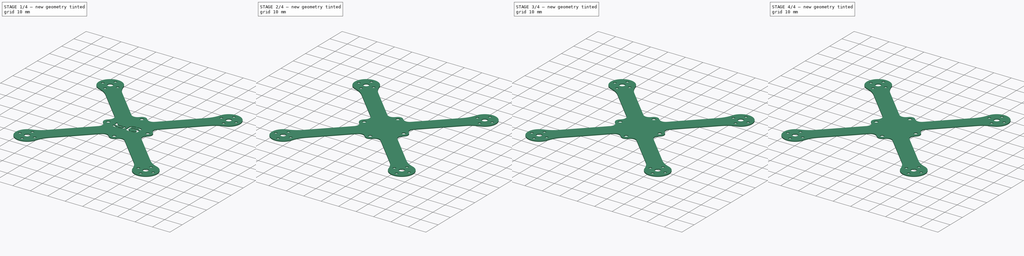
[diagram: build sequence overview — one tinted view per stage of 4, left to right]
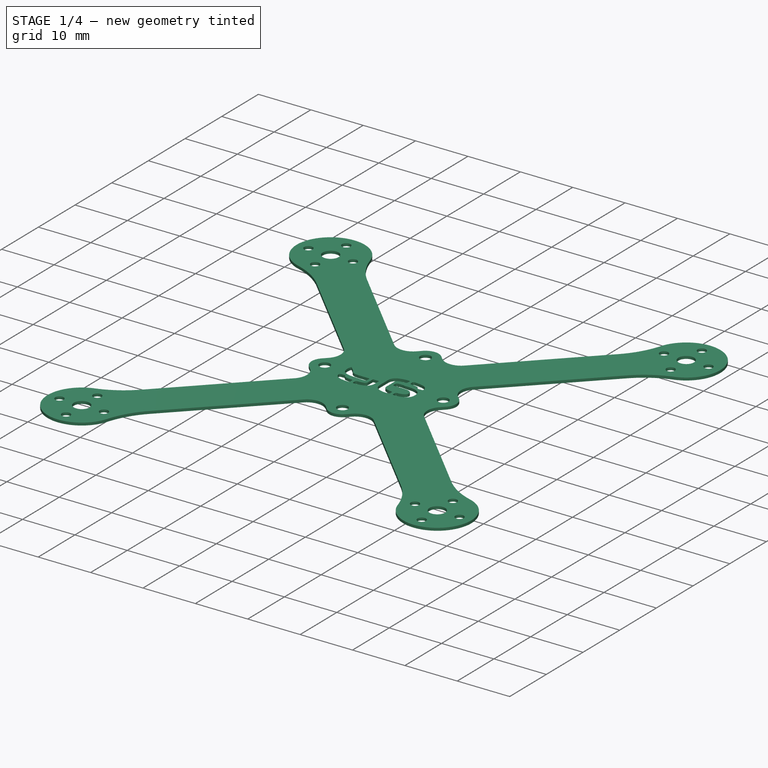
[diagram: stage 1 of 4 — iso view after this stage's code; geometry added in this stage tinted green]
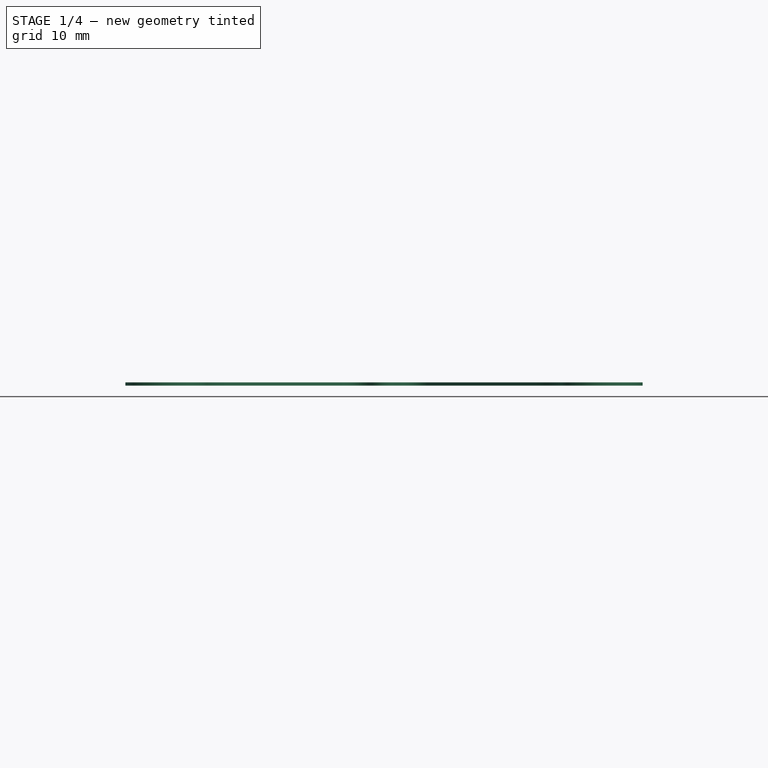
[diagram: stage 1 of 4 — front view after this stage's code; geometry added in this stage tinted green]
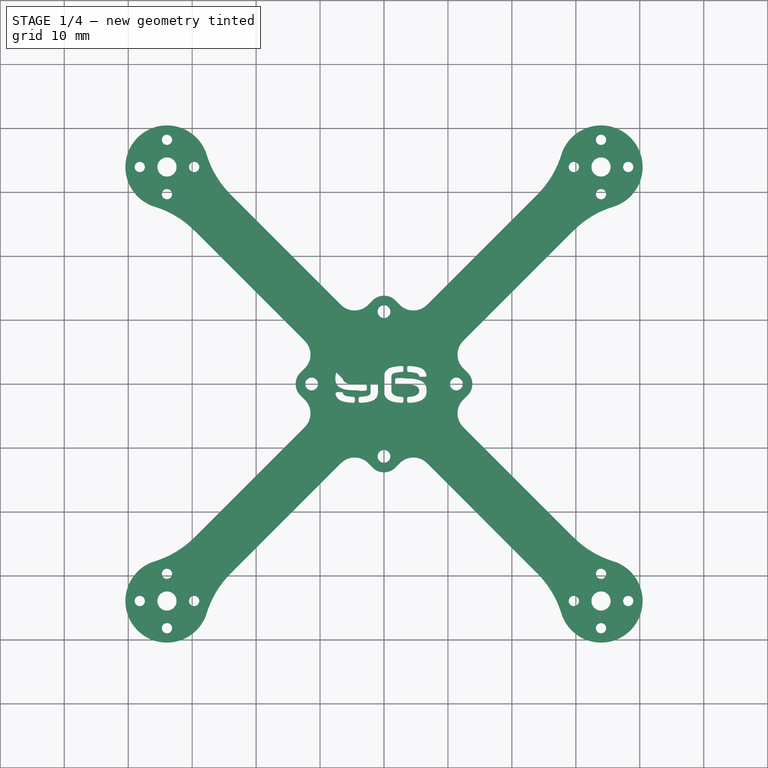
[diagram: stage 1 of 4 — top view after this stage's code; geometry added in this stage tinted green]
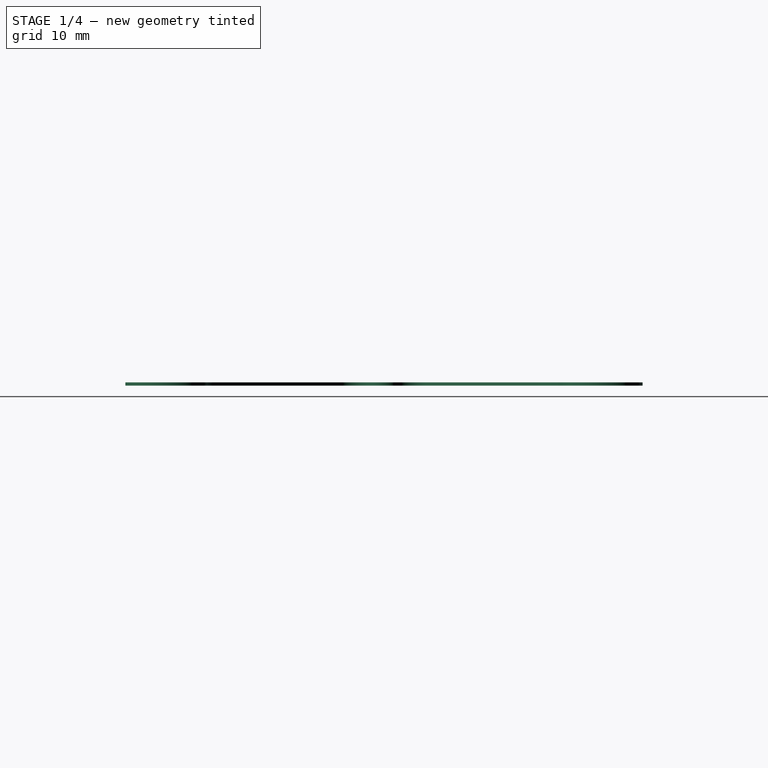
[diagram: stage 1 of 4 — right view after this stage's code; geometry added in this stage tinted green]
FCSTD DOCUMENT  (FreeCAD 0.16R6707 (Git))
Label: pepperF1SH_X96
License: All rights reserved
LicenseURL: http://en.wikipedia.org/wiki/All_rights_reserved
objects: PartDesign::Fillet×3, Sketcher::SketchObject×2, PartDesign::Pad×2, Part::MultiFuse×2, PartDesign::Mirrored×1, Part::Mirroring×1, Part::Part2DObjectPython×1, Part::Extrusion×1, Part::Feature×1, Part::Cut×1
note: 17 computed .brp shape members not serialized (recipe doc carries the construction recipe); baked Part::Feature solids carry a one-line shape summary decoded from their .brp

FEATURE [PartDesign::Pad] Pad  label="single arm"
  Length = 0.5
  Length2 = 100
  Midplane = true
  Sketch = -> Sketch
  Type = 0
FEATURE [Part::Part2DObjectPython] ShapeString  # Draft 2D object (typed FeaturePython)
  FontFile = <userpath>/.fonts/Antaris_ST_CF.otf
  Placement = pos=(-8.1,-3.35,-1.5) rot=(0,0,1;0rad)
  Size = 3.5
  String = 96
  Tracking = 0
FEATURE [Part::Extrusion] Extrude001
  Base = -> ShapeString
  Dir = (0,0,5)
  Solid = false
FEATURE [Part::Feature] Fillet002001  label="Fillet003"
  shape: bbox 80.88 x 80.88 x 0.5 mm, 66 faces (baked)
FEATURE [Part::Cut] Cut
  Base = -> Fillet002001
  Tool = -> Extrude001
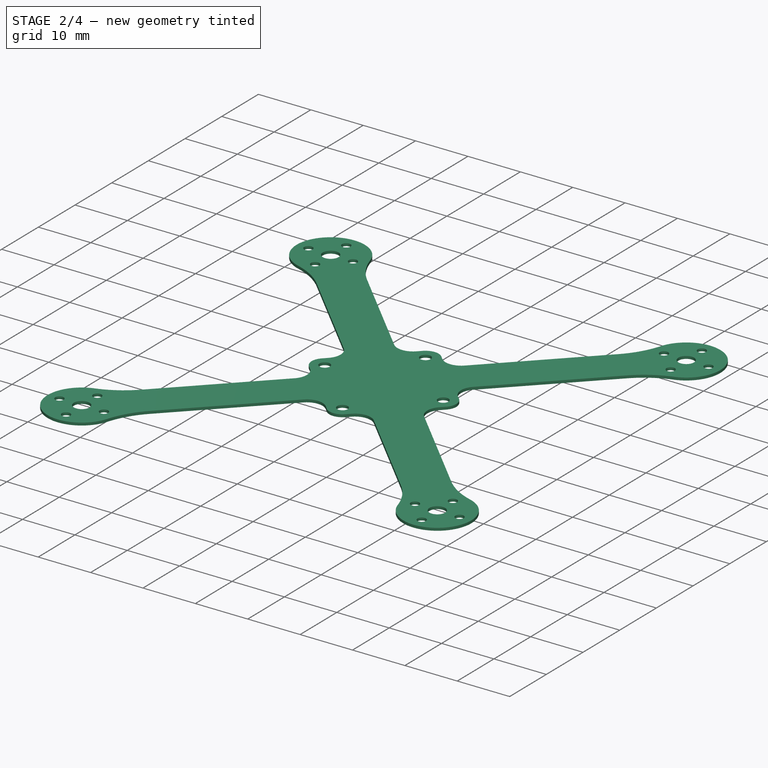
[diagram: stage 2 of 4 — iso view after this stage's code; geometry added in this stage tinted green]
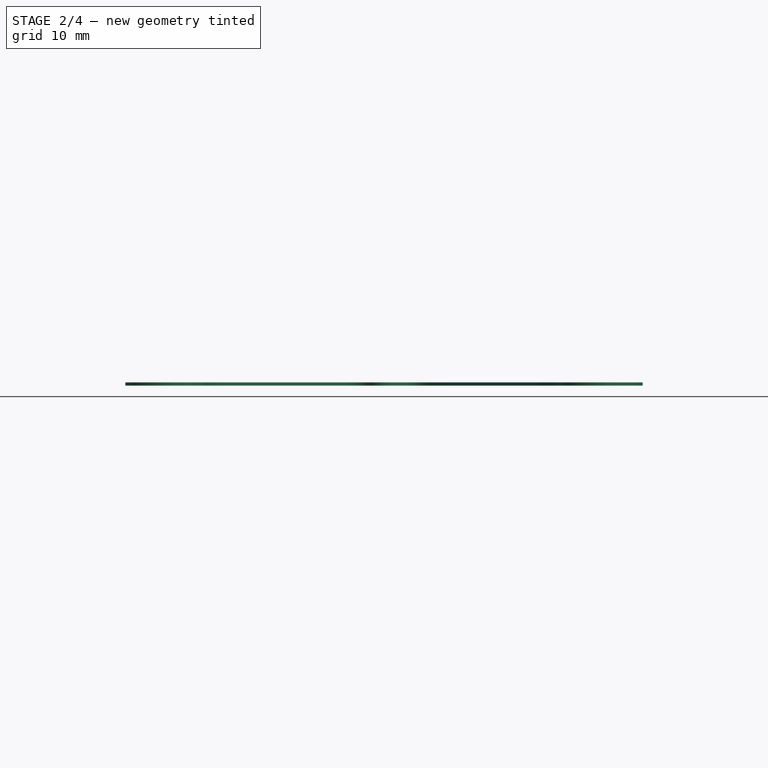
[diagram: stage 2 of 4 — front view after this stage's code; geometry added in this stage tinted green]
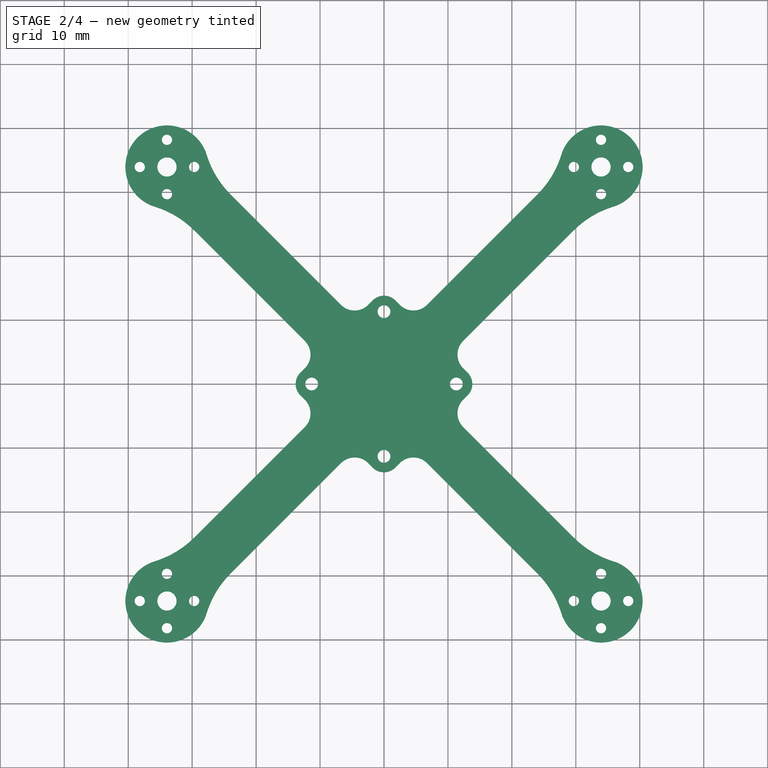
[diagram: stage 2 of 4 — top view after this stage's code; geometry added in this stage tinted green]
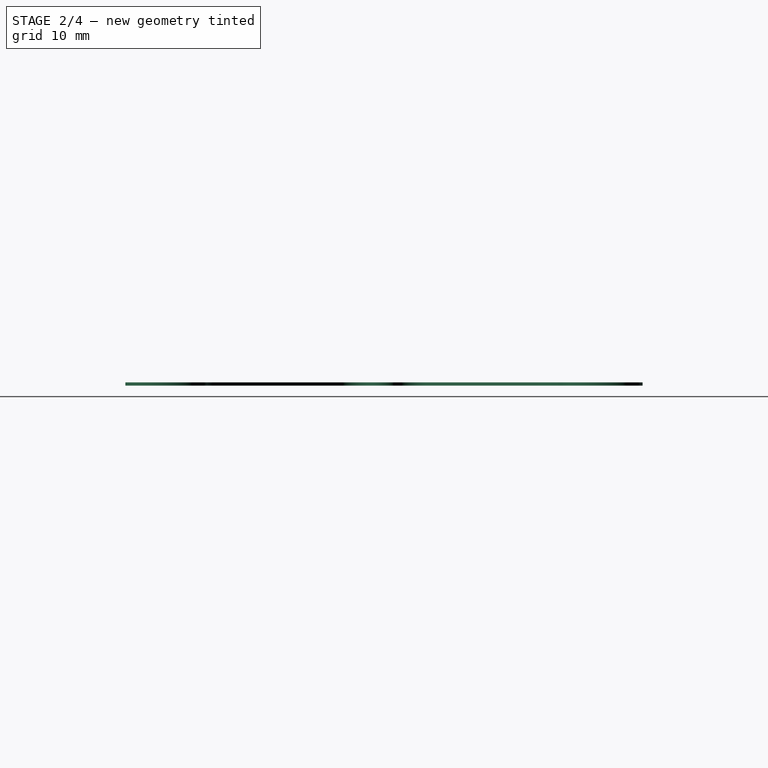
[diagram: stage 2 of 4 — right view after this stage's code; geometry added in this stage tinted green]
FEATURE [Sketcher::SketchObject] Sketch  label="single arm sketch"
  expr: Constraints.C8 = 48 / 2
  expr: Constraints[54] = 96 / 2
  sketch-geometry (22):
    g0: Circle [constr] CenterX=-33.9411 CenterY=33.9411 CenterZ=0 NormalX=0 NormalY=0 NormalZ=1 Radius=4.25
    g1: Circle CenterX=-33.9411 CenterY=38.1911 CenterZ=0 NormalX=0 NormalY=0 NormalZ=1 Radius=0.8
    g2: LineSegment [constr] StartX=-33.9411 StartY=33.9411 StartZ=0 EndX=-33.9411 EndY=38.1911 EndZ=0
    g3: Circle [constr] CenterX=-33.9411 CenterY=33.9411 CenterZ=0 NormalX=0 NormalY=0 NormalZ=1 Radius=24
    g4: Circle [constr] CenterX=33.9411 CenterY=33.9411 CenterZ=0 NormalX=0 NormalY=0 NormalZ=1 Radius=24
    g5: LineSegment [constr] StartX=-33.9411 StartY=33.9411 StartZ=0 EndX=0 EndY=0 EndZ=0
    g6: LineSegment [constr] StartX=-33.9411 StartY=38.1911 StartZ=0 EndX=-29.6911 EndY=33.9411 EndZ=0
    g7: LineSegment [constr] StartX=-29.6911 StartY=33.9411 StartZ=0 EndX=-33.9411 EndY=29.6911 EndZ=0
    g8: LineSegment [constr] StartX=-33.9411 StartY=29.6911 StartZ=0 EndX=-38.1911 EndY=33.9411 EndZ=0
    g9: LineSegment [constr] StartX=-38.1911 StartY=33.9411 StartZ=0 EndX=-33.9411 EndY=38.1911 EndZ=0
    g10: Circle CenterX=-38.1911 CenterY=33.9411 CenterZ=0 NormalX=0 NormalY=0 NormalZ=1 Radius=0.8
    g11: Circle CenterX=-33.9411 CenterY=29.6911 CenterZ=0 NormalX=0 NormalY=0 NormalZ=1 Radius=0.8
    g12: Circle CenterX=-29.6911 CenterY=33.9411 CenterZ=0 NormalX=0 NormalY=0 NormalZ=1 Radius=0.8
    g13: LineSegment [constr] StartX=-33.9411 StartY=38.9911 StartZ=0 EndX=-33.9411 EndY=40.4411 EndZ=0
    g14: LineSegment StartX=-33.1467 StartY=27.4899 StartZ=0 EndX=-5.65685 EndY=0 EndZ=0
    g15: LineSegment StartX=0 StartY=5.65685 StartZ=0 EndX=-27.4899 EndY=33.1467 EndZ=0
    g16: LineSegment StartX=0 StartY=0 StartZ=0 EndX=0 EndY=5.65685 EndZ=0
    g17: LineSegment StartX=0 StartY=0 StartZ=0 EndX=-5.65685 EndY=0 EndZ=0
    g18: LineSegment [constr] StartX=-5.65685 StartY=0 StartZ=0 EndX=0 EndY=5.65685 EndZ=0
    g19: Circle CenterX=-33.9411 CenterY=33.9411 CenterZ=0 NormalX=0 NormalY=0 NormalZ=1 Radius=1.5
    g20: ArcOfCircle CenterX=-33.9411 CenterY=33.9411 CenterZ=0 NormalX=0 NormalY=0 NormalZ=1 Radius=6.5 StartAngle=6.16066 EndAngle=11.1181
    g21: LineSegment [constr] StartX=-9.94113 StartY=33.9411 StartZ=0 EndX=9.94113 EndY=33.9411 EndZ=0
  constraints (60):
    c: Radius(g0) = 4.25
    c: PointOnObject(g1,g0)
    c: Radius(g1) = 0.8
    c: Coincident(g2,g0)
    c: Coincident(g2,g1)
    c: Vertical(g2)
    c: Coincident(g3,g0)
    c: Radius(g3) = 24  'C8'
    c: Equal(g4,g3)
    c: Symmetric(g0,g4,g-2)
    c: DistanceX(g0,g4) = 67.8823
    c: Coincident(g5,g-1)
    c: Angle(g-2,g5) = 0.785398
    c: Coincident(g0,g5)
    c: Coincident(g6,g7)
    c: Coincident(g7,g8)
    c: Coincident(g8,g9)
    c: Coincident(g9,g6)
    c: Coincident(g6,g1)
    c: PointOnObject(g7,g0)
    c: PointOnObject(g8,g0)
    c: Perpendicular(g7,g6)
    c: Coincident(g10,g8)
    c: Coincident(g11,g7)
    c: Coincident(g12,g6)
    c: Equal(g12,g1)
    c: Equal(g1,g10)
    c: Equal(g10,g11)
    c: Vertical(g13)
    c: DistanceY(g13) = 1.45
    c: Parallel(g15,g14)
    c: PointOnObject(g13,g1)
    c: Symmetric(g7,g6,g5)
    c: Equal(g9,g6)
    c: Equal(g6,g7)
    c: Equal(g7,g8)
    c: Coincident(g16,g-1)
    c: Vertical(g16)
    c: Coincident(g17,g-1)
    c: Horizontal(g17)
    c: Coincident(g15,g16)
    c: Coincident(g14,g17)
    c: Symmetric(g15,g14,g5)
    c: Coincident(g18,g14)
    c: Perpendicular(g5,g18)
    c: Distance(g18) = 8
    c: Coincident(g18,g15)
    c: Coincident(g19,g0)
    c: Radius(g19) = 1.5
    c: Coincident(g20,g15)
    c: Coincident(g20,g14)
    c: Perpendicular(g20,g13)
    c: PointOnObject(g13,g20)
    c: Perpendicular(g1,g13)
    c: Distance(g5) = 48
    c: PointOnObject(g21,g3)
    c: PointOnObject(g21,g4)
    c: Perpendicular(g4,g21)
    c: Perpendicular(g3,g21)
    c: DistanceX(g21,g21) = 19.8823
FEATURE [Sketcher::SketchObject] Sketch001  label="center sketch"
  sketch-geometry (15):
    g0: LineSegment [constr] StartX=0 StartY=11.3137 StartZ=0 EndX=-11.3137 EndY=0 EndZ=0
    g1: LineSegment [constr] StartX=-11.3137 StartY=0 StartZ=0 EndX=0 EndY=-11.3137 EndZ=0
    g2: LineSegment [constr] StartX=0 StartY=-11.3137 StartZ=0 EndX=11.3137 EndY=0 EndZ=0
    g3: LineSegment [constr] StartX=11.3137 StartY=0 StartZ=0 EndX=0 EndY=11.3137 EndZ=0
    g4: Circle [constr] CenterX=0 CenterY=0 CenterZ=0 NormalX=0 NormalY=0 NormalZ=1 Radius=11.3137
    g5: Circle CenterX=-11.3137 CenterY=0 CenterZ=0 NormalX=0 NormalY=0 NormalZ=1 Radius=1
    g6: Circle CenterX=0 CenterY=11.3137 CenterZ=0 NormalX=0 NormalY=0 NormalZ=1 Radius=1
    g7: Circle CenterX=11.3137 CenterY=0 CenterZ=0 NormalX=0 NormalY=0 NormalZ=1 Radius=1
    g8: Circle CenterX=0 CenterY=-11.3137 CenterZ=0 NormalX=0 NormalY=0 NormalZ=1 Radius=1
    g9: LineSegment StartX=0 StartY=14.8492 StartZ=0 EndX=-14.8492 EndY=0 EndZ=0
    g10: LineSegment StartX=-14.8492 StartY=0 StartZ=0 EndX=0 EndY=-14.8492 EndZ=0
    g11: LineSegment StartX=0 StartY=-14.8492 StartZ=0 EndX=14.8492 EndY=0 EndZ=0
    g12: LineSegment StartX=14.8492 StartY=0 StartZ=0 EndX=0 EndY=14.8492 EndZ=0
    g13: Circle [constr] CenterX=0 CenterY=0 CenterZ=0 NormalX=0 NormalY=0 NormalZ=1 Radius=14.8492
    g14: LineSegment [constr] StartX=0.707107 StartY=12.0208 StartZ=0 EndX=1.76777 EndY=13.0815 EndZ=0
  constraints (41):
    c: Coincident(g0,g1)
    c: Coincident(g1,g2)
    c: Coincident(g2,g3)
    c: Coincident(g3,g0)
    c: Equal(g0,g1)
    c: Equal(g0,g2)
    c: Equal(g0,g3)
    c: PointOnObject(g0,g4)
    c: PointOnObject(g1,g4)
    c: PointOnObject(g2,g4)
    c: PointOnObject(g3,g4)
    c: Coincident(g1,g-1)
    c: Coincident(g4,g-1)
    c: PointOnObject(g0,g-2)
    c: Distance(g0) = 16
    c: Coincident(g6,g0)
    c: Coincident(g7,g2)
    c: Coincident(g8,g1)
    c: Radius(g5) = 1
    c: Equal(g5,g6)
    c: Equal(g6,g7)
    c: Equal(g7,g8)
    c: Coincident(g9,g10)
    c: Coincident(g10,g11)
    c: Coincident(g11,g12)
    c: Coincident(g12,g9)
    c: Equal(g9,g10)
    c: Equal(g9,g11)
    c: Equal(g9,g12)
    c: PointOnObject(g9,g13)
    c: PointOnObject(g10,g13)
    c: PointOnObject(g11,g13)
    c: PointOnObject(g12,g13)
    c: Coincident(g10,g-1)
    c: PointOnObject(g9,g-2)
    c: PointOnObject(g14,g6)
    c: PointOnObject(g14,g12)
    c: Perpendicular(g12,g14)
    c: Coincident(g13,g-1)
    c: Distance(g14) = 1.5
    c: Perpendicular(g6,g14)
FEATURE [PartDesign::Pad] Pad001  label="center"
  Length = 0.5
  Length2 = 100
  Midplane = true
  Sketch = -> Sketch001
  Type = 0
FEATURE [PartDesign::Fillet] Fillet
  Base = -> Pad001 [Edge1,Edge2,Edge5,Edge8]
  Radius = 1
FEATURE [PartDesign::Mirrored] Mirrored
  MirrorPlane = -> Sketch [V_Axis]
  Originals = -> [Pad]
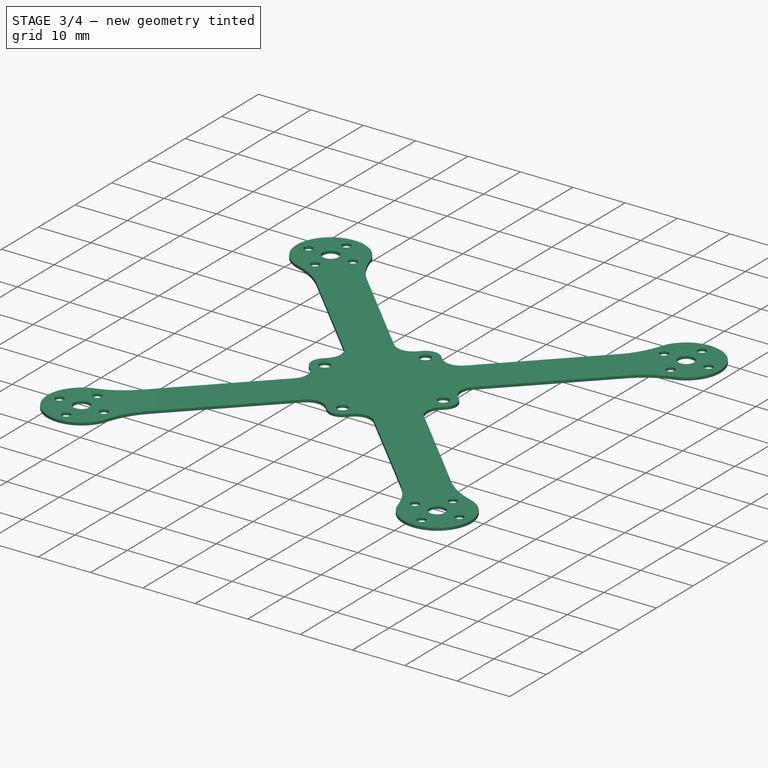
[diagram: stage 3 of 4 — iso view after this stage's code; geometry added in this stage tinted green]
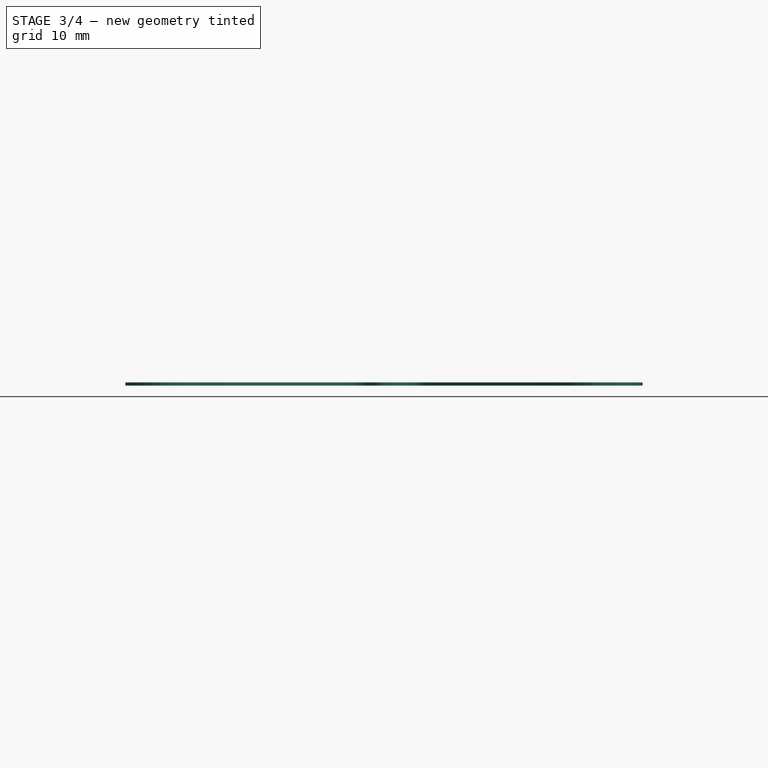
[diagram: stage 3 of 4 — front view after this stage's code; geometry added in this stage tinted green]
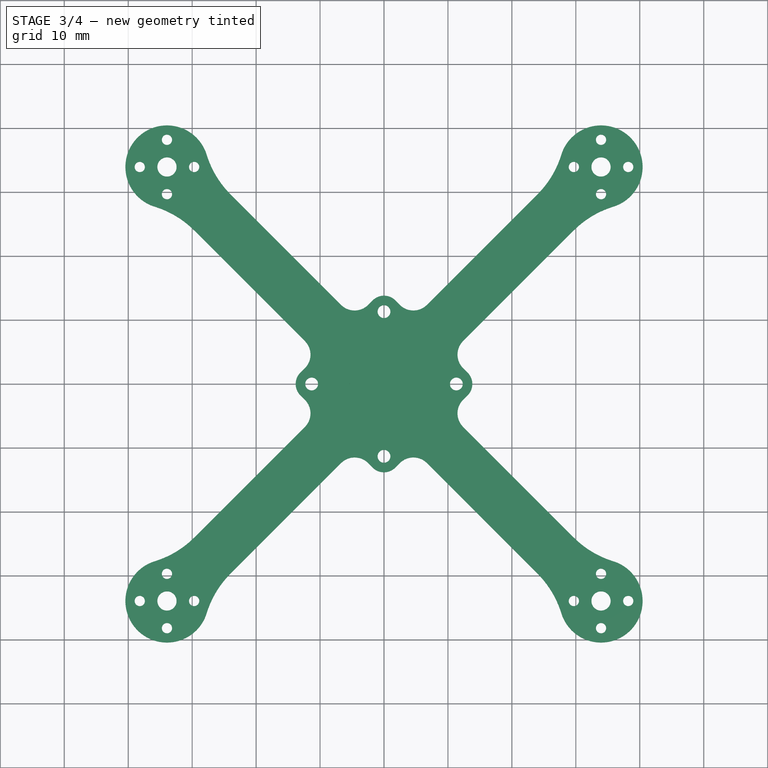
[diagram: stage 3 of 4 — top view after this stage's code; geometry added in this stage tinted green]
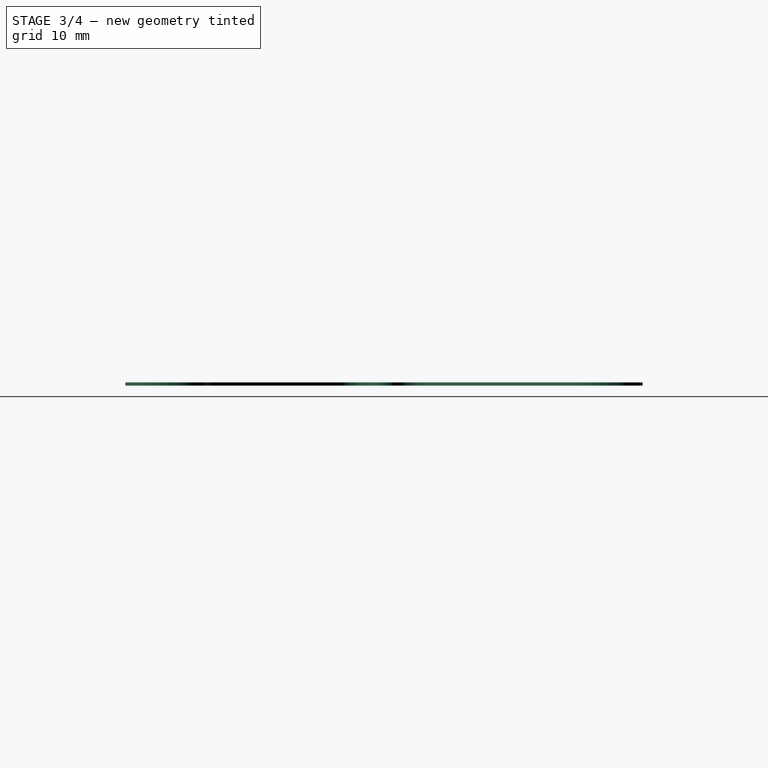
[diagram: stage 3 of 4 — right view after this stage's code; geometry added in this stage tinted green]
FEATURE [Part::Mirroring] Part__Mirroring  label="Mirrored (Mirror #1)"
  Base = (0,0,0)
  Normal = (0,1,0)
  Source = -> Mirrored
FEATURE [Part::MultiFuse] Fusion
  Shapes = -> [Mirrored,Part__Mirroring]
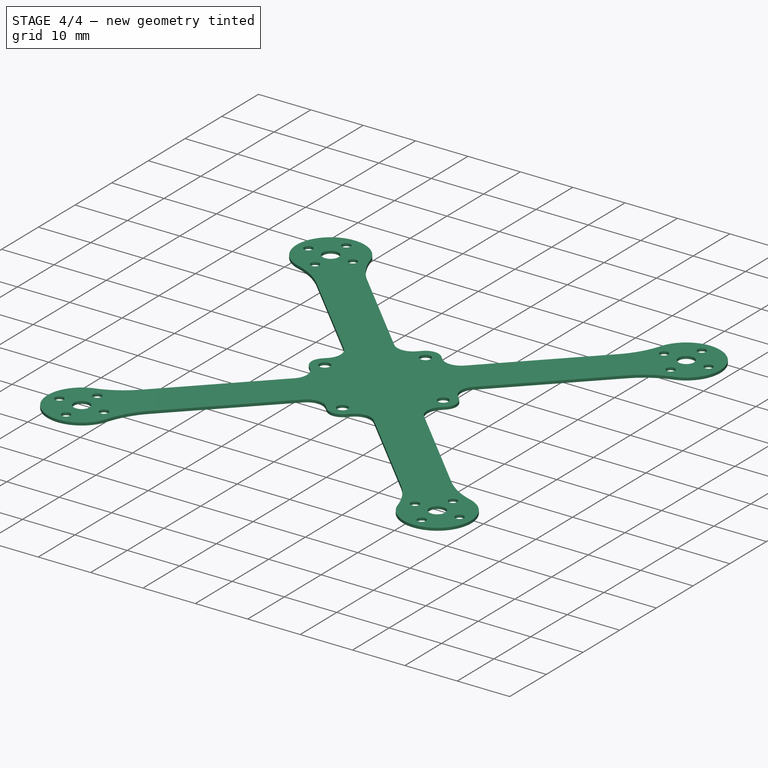
[diagram: stage 4 of 4 — iso view after this stage's code; geometry added in this stage tinted green]
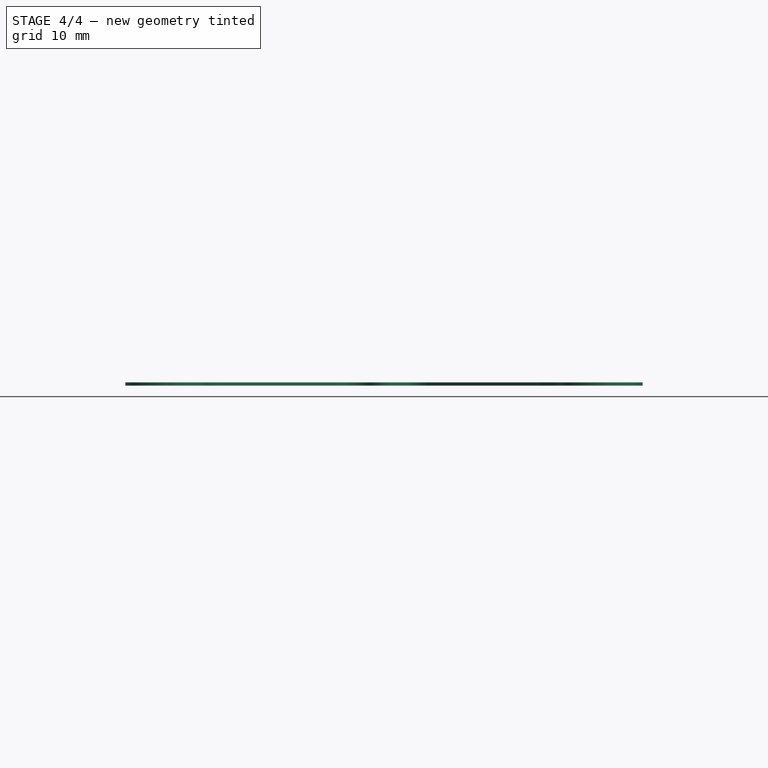
[diagram: stage 4 of 4 — front view after this stage's code; geometry added in this stage tinted green]
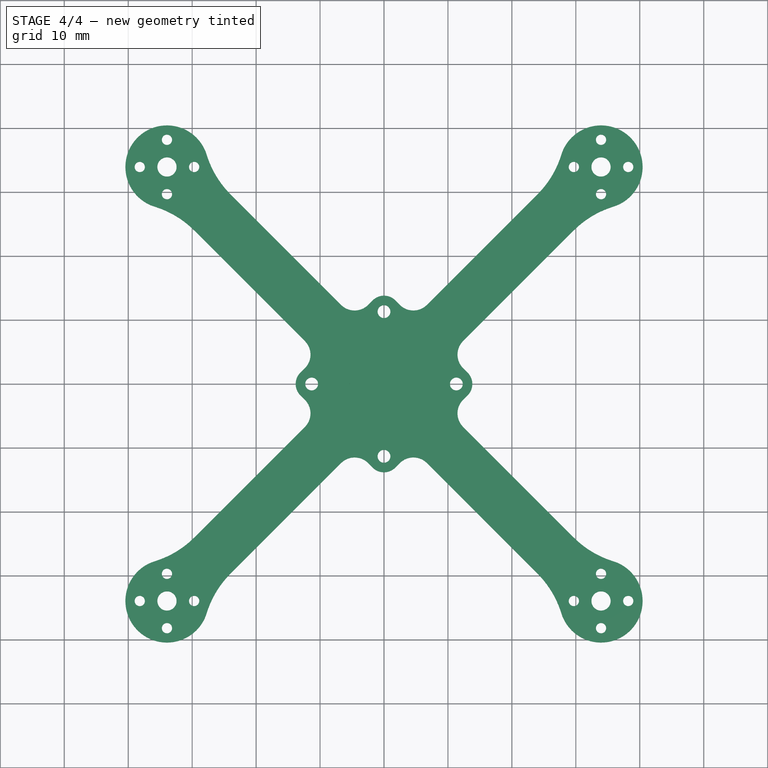
[diagram: stage 4 of 4 — top view after this stage's code; geometry added in this stage tinted green]
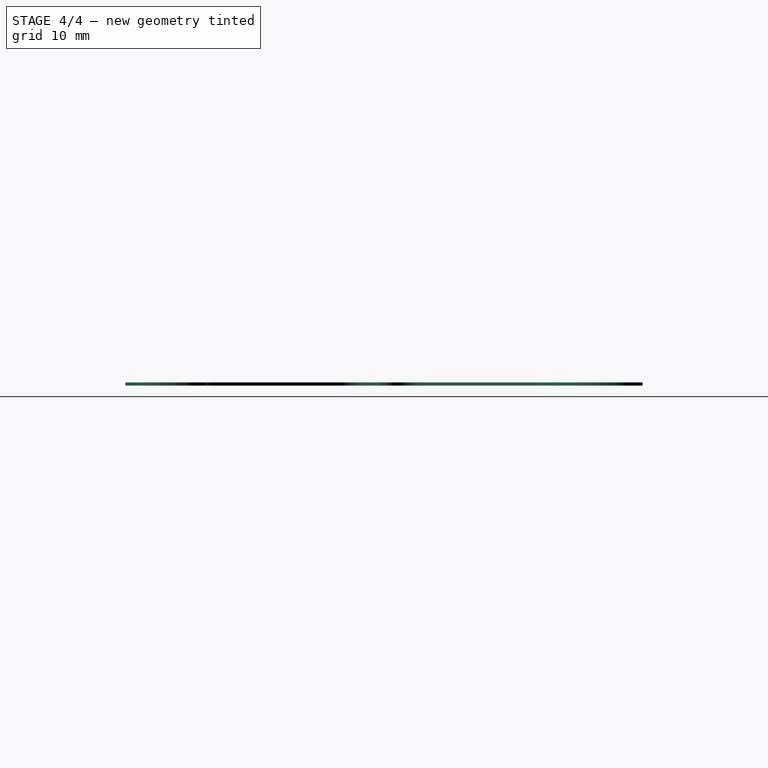
[diagram: stage 4 of 4 — right view after this stage's code; geometry added in this stage tinted green]
FEATURE [Part::MultiFuse] Fusion001
  Shapes = -> [Fusion,Fillet]
FEATURE [PartDesign::Fillet] Fillet001
  Base = -> Fusion001 [Edge171,Edge170,Edge156,Edge145,Edge131,Edge130,Edge1,Edge2]
  Radius = 15
FEATURE [PartDesign::Fillet] Fillet002
  Base = -> Fillet001 [Edge111,Edge171,Edge169,Edge158,Edge156,Edge77,Edge27,Edge32]
  Radius = 3
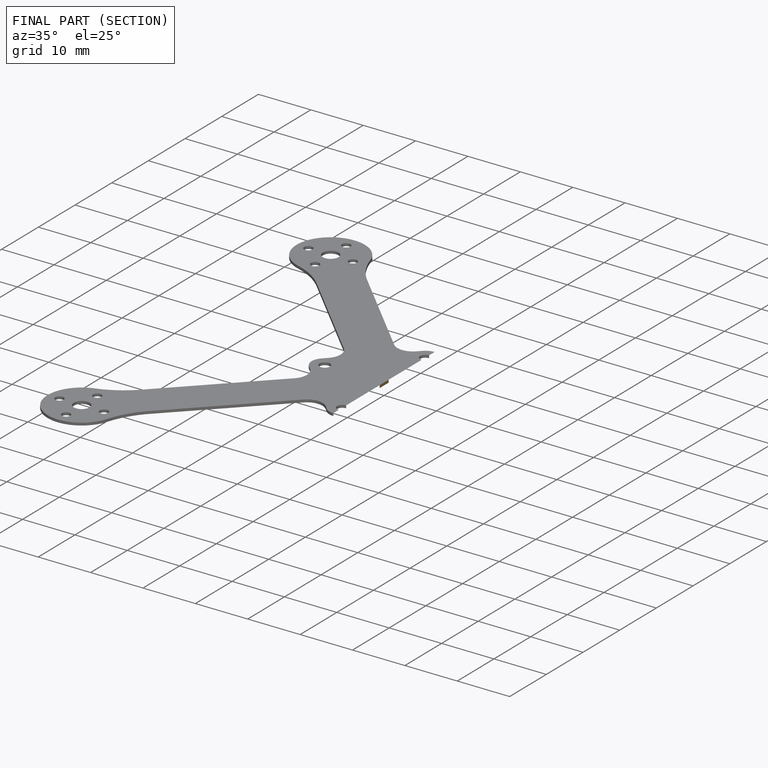
[diagram: finished part — half-section view (interior)]
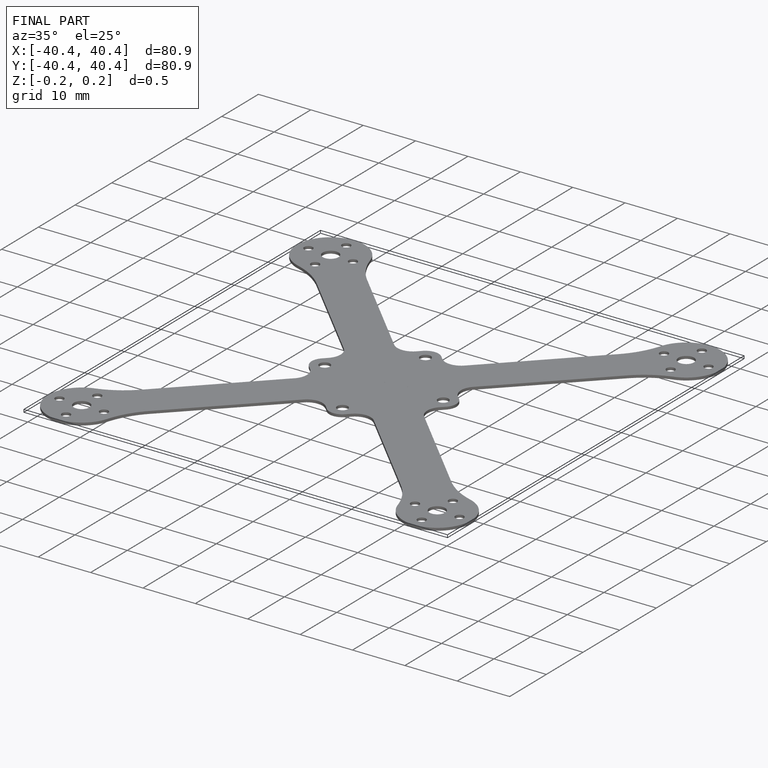
[diagram: finished part — iso view with bounding-box wireframe]
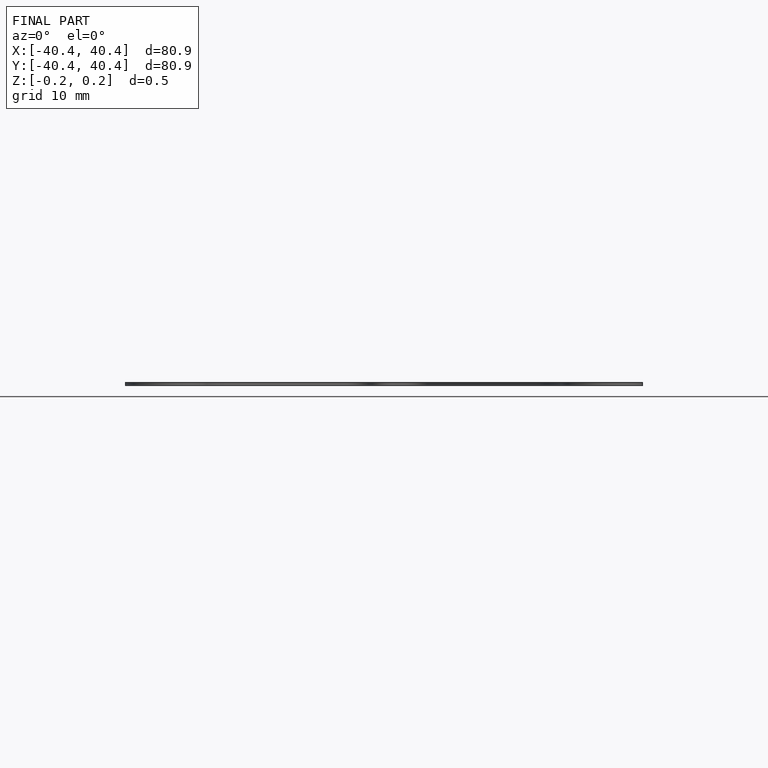
[diagram: finished part — front view with bounding-box wireframe]
